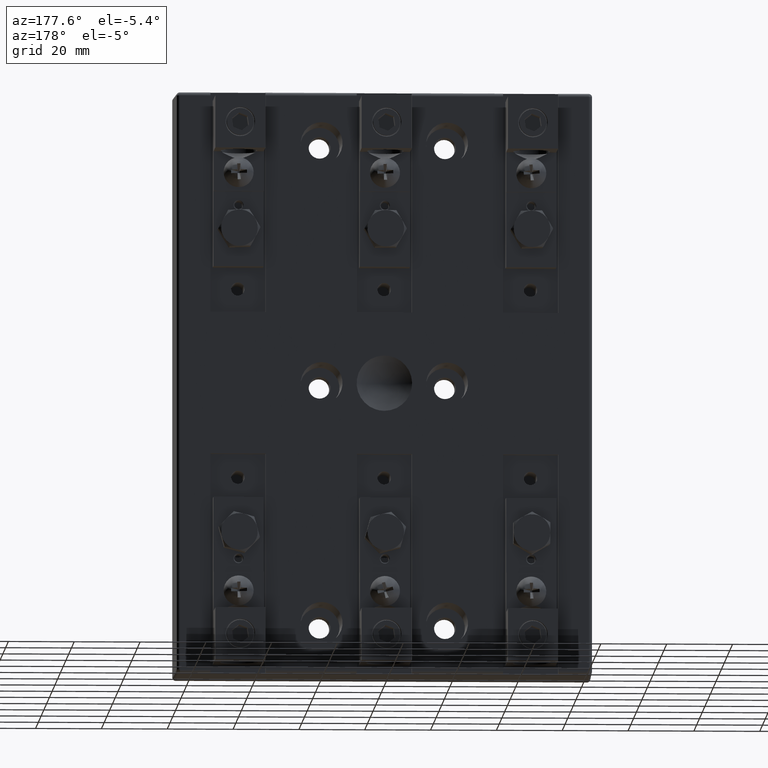
[diagram: clean part render]
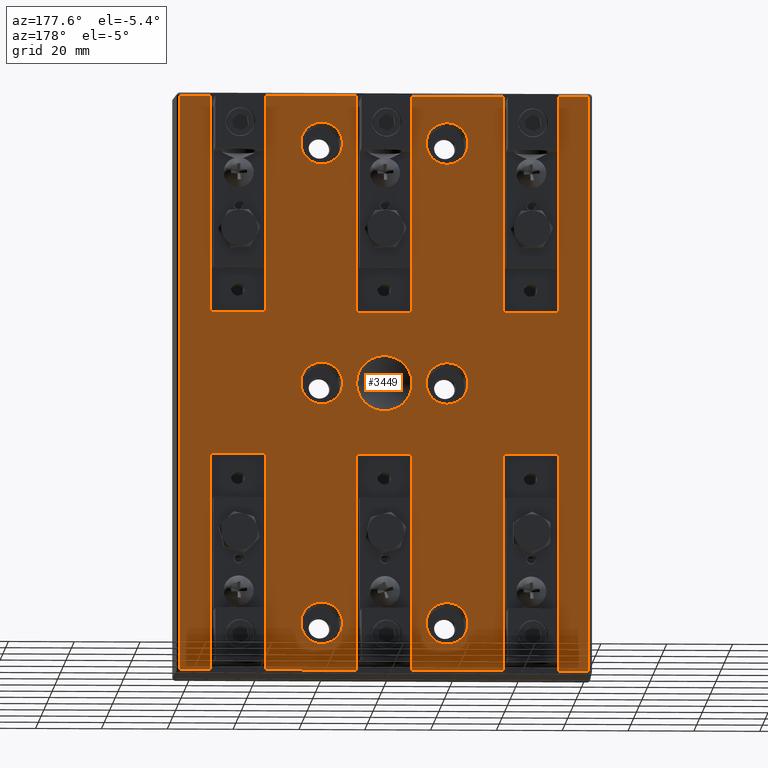
[diagram: same view with one face highlighted and labeled with its STEP entity id]
A machine part, auxiliary view. The second image highlights one B-rep face of the part: STEP entity #3449.
In plain terms, the highlighted planar face has unit normal (0, -1, 0).
Its self-contained STEP definition (entity closure, byte-faithful):
#759 = CARTESIAN_POINT ( 'NONE',  ( 2.499999999999984900, 0.8800000000000000000, -3.445331652338525300 ) ) ;
#921 = CARTESIAN_POINT ( 'NONE',  ( -0.2192438595112225500, 0.8799999999999998900, -0.2498004603860384500 ) ) ;
#990 = LINE ( 'NONE', #17015, #17112 ) ;
#1064 = CARTESIAN_POINT ( 'NONE',  ( -0.3311463024262430400, 0.8800000000000020000, 0.02148128289214068200 ) ) ;
#1106 = VERTEX_POINT ( 'NONE', #9375 ) ;
#1221 = CARTESIAN_POINT ( 'NONE',  ( -0.1754487178452213100, 0.8799999999999998900, 0.2816637087645330100 ) ) ;
#1347 = CARTESIAN_POINT ( 'NONE',  ( 0.1269282664143858700, 0.8800000000000004500, 0.3069830673328560700 ) ) ;
#1413 = VERTEX_POINT ( 'NONE', #3328 ) ;
#1446 = VECTOR ( 'NONE', #11176, 39.37007874015748100 ) ;
#1498 = CARTESIAN_POINT ( 'NONE',  ( 0.3141477289655598100, 0.8800000000000003400, 0.1069115169694839400 ) ) ;
#1610 = DIRECTION ( 'NONE',  ( -0.0000000000000000000, 4.937591343513748400E-033, 1.000000000000000000 ) ) ;
#1655 = CARTESIAN_POINT ( 'NONE',  ( 0.2640019327567058600, 0.8799999999999997800, -0.2019205375050617000 ) ) ;
#2037 = FACE_BOUND ( 'NONE', #42817, .T. ) ;
#2068 = VERTEX_POINT ( 'NONE', #36144 ) ;
#2342 = CARTESIAN_POINT ( 'NONE',  ( -0.7499999999999968900, 0.8800000000004779600, -2.879999999999983900 ) ) ;
#2370 = VECTOR ( 'NONE', #34048, 39.37007874015748100 ) ;
#2381 = EDGE_CURVE ( 'NONE', #30371, #7813, #27301, .T. ) ;
#2567 = VECTOR ( 'NONE', #8291, 39.37007874015748100 ) ;
#2626 = DIRECTION ( 'NONE',  ( 0.0000000000000000000, -4.937591343513748400E-033, -1.000000000000000000 ) ) ;
#2660 = VERTEX_POINT ( 'NONE', #27143 ) ;
#2725 = EDGE_CURVE ( 'NONE', #40840, #40840, #31617, .T. ) ;
#2861 = EDGE_CURVE ( 'NONE', #43401, #7771, #17073, .T. ) ;
#3035 = VERTEX_POINT ( 'NONE', #30109 ) ;
#3128 = EDGE_CURVE ( 'NONE', #3235, #3235, #40695, .T. ) ;
#3141 = FACE_BOUND ( 'NONE', #12259, .T. ) ;
#3235 = VERTEX_POINT ( 'NONE', #16953 ) ;
#3273 = EDGE_CURVE ( 'NONE', #27866, #41222, #34877, .T. ) ;
#3328 = CARTESIAN_POINT ( 'NONE',  ( 2.079999999999993000, 0.8800000000000000000, 0.8499999999999945400 ) ) ;
#3338 = CARTESIAN_POINT ( 'NONE',  ( 1.419999999999992600, 0.8800000000000000000, 3.445331652338525300 ) ) ;
#3449 = ADVANCED_FACE ( 'NONE', ( #20305, #33782, #3141, #11188, #2037, #37545, #28341, #19209 ), #26502, .F. ) ;
#3524 = EDGE_CURVE ( 'NONE', #7771, #25422, #6898, .T. ) ;
#3648 = CARTESIAN_POINT ( 'NONE',  ( 1.419999999999992800, 0.8800000000000000000, 3.499999999999984000 ) ) ;
#3672 = EDGE_CURVE ( 'NONE', #27147, #18531, #7962, .T. ) ;
#3707 = DIRECTION ( 'NONE',  ( 1.000000000000000000, 7.164665015247693300E-050, -3.537618795846281300E-082 ) ) ;
#3715 = ORIENTED_EDGE ( 'NONE', *, *, #17405, .F. ) ;
#3741 = CARTESIAN_POINT ( 'NONE',  ( -2.445331652338533800, 0.8800000000000000000, 3.499999999999984000 ) ) ;
#3748 = EDGE_CURVE ( 'NONE', #41222, #30371, #8461, .T. ) ;
#4257 = EDGE_CURVE ( 'NONE', #39811, #1106, #26659, .T. ) ;
#4421 = CARTESIAN_POINT ( 'NONE',  ( -0.2635689654657674100, 0.8800000000000000000, -0.2025017510574802200 ) ) ;
#4448 = CARTESIAN_POINT ( 'NONE',  ( 2.499999999999984900, 0.8800000000000000000, 3.445331652338525300 ) ) ;
#4500 = CARTESIAN_POINT ( 'NONE',  ( 2.499999999999984900, 0.8800000000000000000, -3.445331652338525300 ) ) ;
#4553 = LINE ( 'NONE', #13580, #2370 ) ;
#4559 = CARTESIAN_POINT ( 'NONE',  ( -0.3274071072562865200, 0.8800000000000000000, 0.05405687285152507200 ) ) ;
#4565 = DIRECTION ( 'NONE',  ( 0.0000000000000000000, -4.937591343513748400E-033, -1.000000000000000000 ) ) ;
#4697 = CARTESIAN_POINT ( 'NONE',  ( -0.1469893110596560400, 0.8799999999999997800, 0.2975104552729566100 ) ) ;
#4715 = ORIENTED_EDGE ( 'NONE', *, *, #27508, .F. ) ;
#4838 = CARTESIAN_POINT ( 'NONE',  ( 2.499999999999984900, 0.8800000000000000000, -0.8499999999999945400 ) ) ;
#4845 = CARTESIAN_POINT ( 'NONE',  ( 0.1656156309045838900, 0.8799999999999998900, 0.2875570132037565400 ) ) ;
#4903 = EDGE_CURVE ( 'NONE', #1106, #2068, #17513, .T. ) ;
#4993 = CARTESIAN_POINT ( 'NONE',  ( 0.3231278430721200000, 0.8800000000000000000, 0.07553289736540189100 ) ) ;
#5118 = CARTESIAN_POINT ( 'NONE',  ( 0.2194095546418384800, 0.8799999999999996700, -0.2496563343311452000 ) ) ;
#5162 = VERTEX_POINT ( 'NONE', #33914 ) ;
#5399 = ORIENTED_EDGE ( 'NONE', *, *, #3128, .F. ) ;
#5801 = DIRECTION ( 'NONE',  ( 0.0000000000000000000, 0.0000000000000000000, 1.000000000000000000 ) ) ;
#5895 = EDGE_CURVE ( 'NONE', #26377, #18978, #17428, .T. ) ;
#5972 = DIRECTION ( 'NONE',  ( 7.164665015247693300E-050, -1.000000000000000000, 4.937591343513748400E-033 ) ) ;
#6373 = VECTOR ( 'NONE', #18714, 39.37007874015748100 ) ;
#6490 = CARTESIAN_POINT ( 'NONE',  ( -1.419999999999990800, 0.8800000000000000000, 3.499999999999984000 ) ) ;
#6669 = VERTEX_POINT ( 'NONE', #27219 ) ;
#6801 = ORIENTED_EDGE ( 'NONE', *, *, #16807, .F. ) ;
#6814 = EDGE_CURVE ( 'NONE', #3035, #39811, #11443, .T. ) ;
#6898 = LINE ( 'NONE', #20055, #14911 ) ;
#7055 = CARTESIAN_POINT ( 'NONE',  ( 2.445331652338533300, 0.8800000000000000000, 3.499999999999984000 ) ) ;
#7144 = ORIENTED_EDGE ( 'NONE', *, *, #14268, .F. ) ;
#7172 = CARTESIAN_POINT ( 'NONE',  ( 1.419999999999992600, 0.8800000000000000000, 3.499999999999984000 ) ) ;
#7328 = LINE ( 'NONE', #25058, #21261 ) ;
#7331 = CARTESIAN_POINT ( 'NONE',  ( 1.419999999999992800, 0.8800000000000000000, -0.8499999999999945400 ) ) ;
#7495 = DIRECTION ( 'NONE',  ( -0.0000000000000000000, 4.937591343513748400E-033, 1.000000000000000000 ) ) ;
#7499 = CARTESIAN_POINT ( 'NONE',  ( 0.3299999999999982400, 0.8800000000000000000, -3.445331652338525300 ) ) ;
#7567 = B_SPLINE_CURVE_WITH_KNOTS ( 'NONE', 3,
 ( #28242, #21358, #31744, #11154, #35227, #14590, #38674, #18053, #42108, #21499, #921, #24937, #4421, #28384, #7861, #31900, #11291, #35376, #14737, #38828, #18205, #42245, #21646, #1064, #25084, #4559, #28532, #8001, #32031, #11441, #35517, #14876, #38965, #18350, #42393, #21782, #1221, #25224, #4697, #28678, #8151, #32176, #11572, #35663, #15021, #39092, #18493, #42537, #21936, #1347, #25376, #4845, #28827, #8298, #32322, #11715, #35803, #15190, #39235, #18633, #42684, #22081, #1498, #25517, #4993, #28972, #8429, #32480, #11867, #35937, #15324, #39379, #18778, #42828, #22223, #1655, #25671, #5118, #29138, #8572, #32620, #12018, #36085, #15463, #39518, #18929, #42963, #22367 ),
 .UNSPECIFIED., .T., .F.,
 ( 4, 2, 2, 2, 2, 2, 2, 2, 1, 2, 2, 2, 2, 2, 2, 2, 2, 2, 2, 2, 2, 2, 2, 2, 2, 1, 2, 2, 2, 2, 2, 2, 2, 2, 2, 2, 2, 2, 2, 2, 2, 2, 2, 2, 4 ),
 ( 0.0000000000000000000, 0.001645938381214450200, 0.002468907571821675300, 0.003291876762428900400, 0.004937815143643353200, 0.006583753524857805100, 0.008229691906072257900, 0.009052661096679482200, 0.009875630287286706400, 0.01069859947789393100, 0.01152156866850115300, 0.01316750704971560000, 0.01399047624032282400, 0.01481344543093004800, 0.01645938381214449500, 0.01728235300275171900, 0.01810532219335894000, 0.01975126057457338900, 0.02139719895578783400, 0.02222016814639505800, 0.02304313733700227900, 0.02468907571821672700, 0.02633501409943117500, 0.02798095248064562700, 0.02880392167125284800, 0.02962689086186007200, 0.03044986005246730000, 0.03127282924307452100, 0.03291876762428896900, 0.03374173681489618700, 0.03456470600550341100, 0.03621064438671785200, 0.03703361357732507000, 0.03785658276793228700, 0.03950252114914672800, 0.04114845953036117000, 0.04197142872096838700, 0.04279439791157560500, 0.04444033629279005300, 0.04608627467400449500, 0.04773221305521894300, 0.04855518224582616000, 0.04937815143643337800, 0.05102408981764781900, 0.05267002819886226800 ),
 .UNSPECIFIED. ) ;
#7639 = CARTESIAN_POINT ( 'NONE',  ( 2.499999999999984900, 0.8800000000000000000, -0.8499999999999945400 ) ) ;
#7771 = VERTEX_POINT ( 'NONE', #19474 ) ;
#7813 = VERTEX_POINT ( 'NONE', #26375 ) ;
#7861 = CARTESIAN_POINT ( 'NONE',  ( -0.2873992381528099300, 0.8800000000000002300, -0.1658900632383758500 ) ) ;
#7950 = VERTEX_POINT ( 'NONE', #36719 ) ;
#7952 = CIRCLE ( 'NONE', #35690, 0.2499999999999872300 ) ;
#7962 = LINE ( 'NONE', #7172, #19733 ) ;
#8000 = CARTESIAN_POINT ( 'NONE',  ( 0.7499999999999967800, 0.8800000000004779600, 0.2499999999999459900 ) ) ;
#8001 = CARTESIAN_POINT ( 'NONE',  ( -0.3148033837368349200, 0.8800000000000002300, 0.1066340052659638700 ) ) ;
#8151 = CARTESIAN_POINT ( 'NONE',  ( -0.1069030756697837800, 0.8799999999999997800, 0.3147141120836246000 ) ) ;
#8204 = CARTESIAN_POINT ( 'NONE',  ( 2.445331652338533300, 0.8799999999999998900, -3.445331652338525300 ) ) ;
#8291 = DIRECTION ( 'NONE',  ( 1.000000000000000000, 7.164665015247693300E-050, -3.537618795846281300E-082 ) ) ;
#8298 = CARTESIAN_POINT ( 'NONE',  ( 0.2022726151394981500, 0.8800000000000000000, 0.2637479304188156700 ) ) ;
#8299 = ORIENTED_EDGE ( 'NONE', *, *, #35514, .F. ) ;
#8429 = CARTESIAN_POINT ( 'NONE',  ( 0.3316399808222250700, 0.8800000000000003400, 0.02220739623505074400 ) ) ;
#8461 = LINE ( 'NONE', #14472, #26696 ) ;
#8527 = CARTESIAN_POINT ( 'NONE',  ( -2.079999999999991600, 0.8800000000000000000, 3.499999999999984000 ) ) ;
#8572 = CARTESIAN_POINT ( 'NONE',  ( 0.1755975452067239400, 0.8800000000000004500, -0.2815741846573110400 ) ) ;
#8717 = EDGE_CURVE ( 'NONE', #15387, #35169, #12524, .T. ) ;
#8860 = ORIENTED_EDGE ( 'NONE', *, *, #9312, .F. ) ;
#8918 = ORIENTED_EDGE ( 'NONE', *, *, #2381, .F. ) ;
#8936 = DIRECTION ( 'NONE',  ( -0.0000000000000000000, 1.000000000000000000, 0.0000000000000000000 ) ) ;
#9215 = CARTESIAN_POINT ( 'NONE',  ( 2.499999999999984900, 0.8800000000000000000, 0.8499999999999945400 ) ) ;
#9312 = EDGE_CURVE ( 'NONE', #2068, #38470, #19460, .T. ) ;
#9323 = AXIS2_PLACEMENT_3D ( 'NONE', #36754, #35082, #34929 ) ;
#9375 = CARTESIAN_POINT ( 'NONE',  ( -0.3299999999999984100, 0.8800000000000000000, -3.445331652338525300 ) ) ;
#9504 = VECTOR ( 'NONE', #42829, 39.37007874015748100 ) ;
#9543 = CARTESIAN_POINT ( 'NONE',  ( 0.3299999999999984100, 0.8800000000000000000, 3.499999999999984000 ) ) ;
#9619 = LINE ( 'NONE', #6490, #17664 ) ;
#9881 = DIRECTION ( 'NONE',  ( -1.000000000000000000, -7.164665015247693300E-050, 3.537618795846281300E-082 ) ) ;
#10005 = VERTEX_POINT ( 'NONE', #39266 ) ;
#10195 = ORIENTED_EDGE ( 'NONE', *, *, #27618, .F. ) ;
#10447 = CARTESIAN_POINT ( 'NONE',  ( 2.499999999999984900, 0.8800000000000000000, -0.8499999999999945400 ) ) ;
#10545 = VECTOR ( 'NONE', #27781, 39.37007874015748100 ) ;
#10580 = LINE ( 'NONE', #32481, #9504 ) ;
#10688 = CARTESIAN_POINT ( 'NONE',  ( 2.499999999999984900, 0.8800000000000000000, 3.445331652338525300 ) ) ;
#10851 = ORIENTED_EDGE ( 'NONE', *, *, #32587, .F. ) ;
#11093 = DIRECTION ( 'NONE',  ( -0.0000000000000000000, 1.000000000000000000, 0.0000000000000000000 ) ) ;
#11154 = CARTESIAN_POINT ( 'NONE',  ( -0.07524719073246077800, 0.8799999999999998900, -0.3231943550607726000 ) ) ;
#11176 = DIRECTION ( 'NONE',  ( -1.000000000000000000, -7.164665015247693300E-050, 3.537618795846281300E-082 ) ) ;
#11188 = FACE_BOUND ( 'NONE', #18216, .T. ) ;
#11266 = EDGE_CURVE ( 'NONE', #5162, #19350, #39741, .T. ) ;
#11291 = CARTESIAN_POINT ( 'NONE',  ( -0.3068754760415490800, 0.8800000000000008900, -0.1271880669884430100 ) ) ;
#11441 = CARTESIAN_POINT ( 'NONE',  ( -0.2976586157838774800, 0.8800000000000004500, 0.1466902449278988700 ) ) ;
#11443 = LINE ( 'NONE', #14447, #39936 ) ;
#11572 = CARTESIAN_POINT ( 'NONE',  ( -0.04374129921759411400, 0.8800000000000003400, 0.3294784177325302300 ) ) ;
#11575 = EDGE_CURVE ( 'NONE', #10005, #5162, #39199, .T. ) ;
#11595 = LINE ( 'NONE', #10688, #10545 ) ;
#11686 = CARTESIAN_POINT ( 'NONE',  ( -0.3299999999999978500, 0.8800000000000000000, 3.445331652338525300 ) ) ;
#11715 = CARTESIAN_POINT ( 'NONE',  ( 0.2419455241667647900, 0.8800000000000003400, 0.2271106692533713400 ) ) ;
#11867 = CARTESIAN_POINT ( 'NONE',  ( 0.3295489963742634900, 0.8800000000000000000, -0.04317576522689654100 ) ) ;
#12018 = CARTESIAN_POINT ( 'NONE',  ( 0.1470073685316878000, 0.8800000000000000000, -0.2975012008283776700 ) ) ;
#12259 = EDGE_LOOP ( 'NONE', ( #24182 ) ) ;
#12308 = ORIENTED_EDGE ( 'NONE', *, *, #33708, .F. ) ;
#12524 = LINE ( 'NONE', #3648, #30845 ) ;
#12607 = ORIENTED_EDGE ( 'NONE', *, *, #4257, .F. ) ;
#12705 = CARTESIAN_POINT ( 'NONE',  ( -2.079999999999991600, 0.8800000000000000000, -0.8499999999999945400 ) ) ;
#12864 = VERTEX_POINT ( 'NONE', #40945 ) ;
#13101 = EDGE_CURVE ( 'NONE', #38470, #43044, #10580, .T. ) ;
#13223 = EDGE_LOOP ( 'NONE', ( #12308 ) ) ;
#13580 = CARTESIAN_POINT ( 'NONE',  ( -0.3299999999999978500, 0.8800000000000000000, 3.499999999999984000 ) ) ;
#13927 = VECTOR ( 'NONE', #27713, 39.37007874015748100 ) ;
#14268 = EDGE_CURVE ( 'NONE', #34183, #26377, #34694, .T. ) ;
#14447 = CARTESIAN_POINT ( 'NONE',  ( -1.419999999999991900, 0.8800000000000000000, 3.499999999999984000 ) ) ;
#14472 = CARTESIAN_POINT ( 'NONE',  ( -2.079999999999992100, 0.8800000000000000000, 3.499999999999984000 ) ) ;
#14590 = CARTESIAN_POINT ( 'NONE',  ( -0.1065917831559456000, 0.8800000000000000000, -0.3142557739471974500 ) ) ;
#14737 = CARTESIAN_POINT ( 'NONE',  ( -0.3204825351325991100, 0.8799999999999997800, -0.08607348378935819600 ) ) ;
#14842 = ORIENTED_EDGE ( 'NONE', *, *, #2725, .F. ) ;
#14876 = CARTESIAN_POINT ( 'NONE',  ( -0.2818180422526021000, 0.8799999999999998900, 0.1752009226184029500 ) ) ;
#14911 = VECTOR ( 'NONE', #9881, 39.37007874015748100 ) ;
#15021 = CARTESIAN_POINT ( 'NONE',  ( 0.02152699310816967200, 0.8800000000000003400, 0.3316701091577655700 ) ) ;
#15190 = CARTESIAN_POINT ( 'NONE',  ( 0.2631063414190508700, 0.8799999999999996700, 0.2022230548163298500 ) ) ;
#15324 = CARTESIAN_POINT ( 'NONE',  ( 0.3206457450560685800, 0.8800000000000002300, -0.08546620509309386900 ) ) ;
#15387 = VERTEX_POINT ( 'NONE', #22499 ) ;
#15463 = CARTESIAN_POINT ( 'NONE',  ( 0.1073038851982616300, 0.8799999999999998900, -0.3145672352267900300 ) ) ;
#15618 = CARTESIAN_POINT ( 'NONE',  ( -1.419999999999991000, 0.8800000000000000000, 0.8499999999999949800 ) ) ;
#15768 = CIRCLE ( 'NONE', #43457, 0.2499999999999752100 ) ;
#15820 = CARTESIAN_POINT ( 'NONE',  ( 0.7499999999999957800, 0.8800000000004779600, -2.879999999999983900 ) ) ;
#15932 = ORIENTED_EDGE ( 'NONE', *, *, #40550, .F. ) ;
#16100 = CARTESIAN_POINT ( 'NONE',  ( -0.7499999999999961100, 0.8800000000004779600, 2.879999999999983900 ) ) ;
#16150 = CARTESIAN_POINT ( 'NONE',  ( 2.499999999999984900, 0.8800000000000000000, 3.499999999999984000 ) ) ;
#16401 = CARTESIAN_POINT ( 'NONE',  ( -1.419999999999991500, 0.8800000000000000000, -3.445331652338525300 ) ) ;
#16608 = CARTESIAN_POINT ( 'NONE',  ( 2.499999999999984900, 0.8800000000000000000, -3.445331652338525300 ) ) ;
#16683 = DIRECTION ( 'NONE',  ( 0.0000000000000000000, -4.937591343513748400E-033, -1.000000000000000000 ) ) ;
#16807 = EDGE_CURVE ( 'NONE', #6669, #27866, #9619, .T. ) ;
#16932 = CARTESIAN_POINT ( 'NONE',  ( -2.079999999999992100, 0.8800000000000000000, 3.445331652338525300 ) ) ;
#16953 = CARTESIAN_POINT ( 'NONE',  ( 0.7499999999999963400, 0.8800000000004779600, 3.129999999999959000 ) ) ;
#17015 = CARTESIAN_POINT ( 'NONE',  ( 2.499999999999984900, 0.8800000000000000000, -3.445331652338525300 ) ) ;
#17073 = LINE ( 'NONE', #9543, #34298 ) ;
#17112 = VECTOR ( 'NONE', #44518, 39.37007874015748100 ) ;
#17280 = LINE ( 'NONE', #24008, #26386 ) ;
#17405 = EDGE_CURVE ( 'NONE', #19350, #32604, #21363, .T. ) ;
#17428 = LINE ( 'NONE', #8527, #26532 ) ;
#17513 = LINE ( 'NONE', #38319, #34743 ) ;
#17664 = VECTOR ( 'NONE', #16683, 39.37007874015748100 ) ;
#17673 = ORIENTED_EDGE ( 'NONE', *, *, #3672, .F. ) ;
#18053 = CARTESIAN_POINT ( 'NONE',  ( -0.1470715229474666400, 0.8799999999999997800, -0.2980646922903003000 ) ) ;
#18113 = ORIENTED_EDGE ( 'NONE', *, *, #6814, .F. ) ;
#18205 = CARTESIAN_POINT ( 'NONE',  ( -0.3295440873304810200, 0.8800000000000002300, -0.04332489849078265100 ) ) ;
#18216 = EDGE_LOOP ( 'NONE', ( #5399 ) ) ;
#18350 = CARTESIAN_POINT ( 'NONE',  ( -0.2501114863262510800, 0.8799999999999996700, 0.2189141379513516700 ) ) ;
#18493 = CARTESIAN_POINT ( 'NONE',  ( 0.07510051611857719600, 0.8799999999999994500, 0.3232315155004909500 ) ) ;
#18531 = VERTEX_POINT ( 'NONE', #3338 ) ;
#18533 = ORIENTED_EDGE ( 'NONE', *, *, #13101, .F. ) ;
#18633 = CARTESIAN_POINT ( 'NONE',  ( 0.2877386179054513500, 0.8800000000000002300, 0.1663647473667031800 ) ) ;
#18641 = EDGE_LOOP ( 'NONE', ( #38193 ) ) ;
#18654 = ORIENTED_EDGE ( 'NONE', *, *, #11575, .F. ) ;
#18714 = DIRECTION ( 'NONE',  ( -1.000000000000000000, -7.164665015247693300E-050, 3.537618795846281300E-082 ) ) ;
#18778 = CARTESIAN_POINT ( 'NONE',  ( 0.3106666880965310900, 0.8799999999999997800, -0.1166391403362698600 ) ) ;
#18848 = VECTOR ( 'NONE', #3707, 39.37007874015748100 ) ;
#18882 = CARTESIAN_POINT ( 'NONE',  ( -2.445331652338533800, 0.8799999999999998900, -3.445331652338525300 ) ) ;
#18929 = CARTESIAN_POINT ( 'NONE',  ( 0.04359527843575283100, 0.8800000000000006700, -0.3295122274615211500 ) ) ;
#18978 = VERTEX_POINT ( 'NONE', #12705 ) ;
#19074 = ORIENTED_EDGE ( 'NONE', *, *, #8717, .F. ) ;
#19209 = FACE_OUTER_BOUND ( 'NONE', #22110, .T. ) ;
#19255 = DIRECTION ( 'NONE',  ( 0.0000000000000000000, 0.0000000000000000000, 1.000000000000000000 ) ) ;
#19350 = VERTEX_POINT ( 'NONE', #8204 ) ;
#19404 = CARTESIAN_POINT ( 'NONE',  ( 2.445331652338533300, 0.8799999999999998900, 3.445331652338525300 ) ) ;
#19460 = LINE ( 'NONE', #7639, #36710 ) ;
#19474 = CARTESIAN_POINT ( 'NONE',  ( 0.3299999999999984100, 0.8800000000000000000, 0.8499999999999948700 ) ) ;
#19547 = DIRECTION ( 'NONE',  ( 0.0000000000000000000, 0.0000000000000000000, 1.000000000000000000 ) ) ;
#19733 = VECTOR ( 'NONE', #27691, 39.37007874015748100 ) ;
#19795 = EDGE_CURVE ( 'NONE', #25422, #29018, #4553, .T. ) ;
#20055 = CARTESIAN_POINT ( 'NONE',  ( 2.499999999999984900, 0.8800000000000000000, 0.8499999999999949800 ) ) ;
#20062 = DIRECTION ( 'NONE',  ( 1.000000000000000000, 7.164665015247693300E-050, -3.537618795846281300E-082 ) ) ;
#20131 = EDGE_CURVE ( 'NONE', #12864, #12864, #15768, .T. ) ;
#20198 = CARTESIAN_POINT ( 'NONE',  ( 0.3299999999999984100, 0.8800000000000000000, 3.445331652338525300 ) ) ;
#20305 = FACE_BOUND ( 'NONE', #39004, .T. ) ;
#20356 = ORIENTED_EDGE ( 'NONE', *, *, #2861, .F. ) ;
#20745 = ORIENTED_EDGE ( 'NONE', *, *, #5895, .F. ) ;
#20900 = VECTOR ( 'NONE', #4565, 39.37007874015748100 ) ;
#21061 = CARTESIAN_POINT ( 'NONE',  ( -0.7499999999999968900, 0.8800000000004779600, -2.629999999999996800 ) ) ;
#21091 = VECTOR ( 'NONE', #22842, 39.37007874015748100 ) ;
#21261 = VECTOR ( 'NONE', #31714, 39.37007874015748100 ) ;
#21358 = CARTESIAN_POINT ( 'NONE',  ( -0.02191123905046396500, 0.8799999999999998900, -0.3316624790355396900 ) ) ;
#21363 = LINE ( 'NONE', #7055, #30519 ) ;
#21416 = DIRECTION ( 'NONE',  ( 1.000000000000000000, 7.164665015247693300E-050, -3.537618795846281300E-082 ) ) ;
#21474 = CIRCLE ( 'NONE', #26982, 0.2499999999999459900 ) ;
#21499 = CARTESIAN_POINT ( 'NONE',  ( -0.2021740420646250500, 0.8800000000000000000, -0.2638094454732232700 ) ) ;
#21646 = CARTESIAN_POINT ( 'NONE',  ( -0.3316681747407456100, 0.8800000000000000000, 0.01063868957930300300 ) ) ;
#21782 = CARTESIAN_POINT ( 'NONE',  ( -0.2023841585807472900, 0.8800000000000003400, 0.2636426408410818000 ) ) ;
#21936 = CARTESIAN_POINT ( 'NONE',  ( 0.1065554465531798500, 0.8800000000000002300, 0.3142672540158792400 ) ) ;
#22030 = EDGE_CURVE ( 'NONE', #1413, #27147, #39375, .T. ) ;
#22081 = CARTESIAN_POINT ( 'NONE',  ( 0.3104357446945940100, 0.8800000000000002300, 0.1172497301220686300 ) ) ;
#22110 = EDGE_LOOP ( 'NONE', ( #10195, #17673, #34335, #31610, #4715, #3715, #28334, #18654, #15932, #19074, #8299, #18533, #8860, #32641, #12607, #18113, #34221, #20745, #7144, #24277, #8918, #30162, #44431, #6801, #22146, #39986, #37872, #20356 ) ) ;
#22146 = ORIENTED_EDGE ( 'NONE', *, *, #38240, .F. ) ;
#22223 = CARTESIAN_POINT ( 'NONE',  ( 0.2880159924566262900, 0.8800000000000002300, -0.1658786063807924900 ) ) ;
#22367 = CARTESIAN_POINT ( 'NONE',  ( 2.561107494060246800E-017, 0.8799999999999998900, -0.3316624790355396400 ) ) ;
#22499 = CARTESIAN_POINT ( 'NONE',  ( 1.419999999999992800, 0.8800000000000000000, -3.445331652338525300 ) ) ;
#22842 = DIRECTION ( 'NONE',  ( -1.000000000000000000, -7.164665015247693300E-050, 3.537618795846281300E-082 ) ) ;
#23061 = ORIENTED_EDGE ( 'NONE', *, *, #42203, .F. ) ;
#23692 = CARTESIAN_POINT ( 'NONE',  ( -0.7499999999999956700, 0.8800000000004779600, 0.2499999999999459900 ) ) ;
#23782 = VERTEX_POINT ( 'NONE', #21061 ) ;
#24008 = CARTESIAN_POINT ( 'NONE',  ( 2.079999999999993400, 0.8800000000000000000, 3.499999999999984000 ) ) ;
#24182 = ORIENTED_EDGE ( 'NONE', *, *, #20131, .F. ) ;
#24260 = DIRECTION ( 'NONE',  ( -0.0000000000000000000, 4.937591343513748400E-033, 1.000000000000000000 ) ) ;
#24277 = ORIENTED_EDGE ( 'NONE', *, *, #35127, .F. ) ;
#24921 = DIRECTION ( 'NONE',  ( 1.000000000000000000, 7.164665015247693300E-050, -3.537618795846281300E-082 ) ) ;
#24937 = CARTESIAN_POINT ( 'NONE',  ( -0.2498398044864721900, 0.8799999999999997800, -0.2191990238039729100 ) ) ;
#25058 = CARTESIAN_POINT ( 'NONE',  ( 2.499999999999984900, 0.8800000000000000000, 3.445331652338525300 ) ) ;
#25084 = CARTESIAN_POINT ( 'NONE',  ( -0.3290152370220877900, 0.8800000000000016700, 0.04322375426272444900 ) ) ;
#25118 = EDGE_CURVE ( 'NONE', #18978, #3035, #29969, .T. ) ;
#25224 = CARTESIAN_POINT ( 'NONE',  ( -0.1661679881181711000, 0.8800000000000000000, 0.2872394963915541600 ) ) ;
#25260 = CARTESIAN_POINT ( 'NONE',  ( -2.079999999999991600, 0.8800000000000000000, -3.445331652338525300 ) ) ;
#25376 = CARTESIAN_POINT ( 'NONE',  ( 0.1464797266573334700, 0.8800000000000005600, 0.2977604116080270800 ) ) ;
#25422 = VERTEX_POINT ( 'NONE', #36959 ) ;
#25517 = CARTESIAN_POINT ( 'NONE',  ( 0.3204908814575841400, 0.8800000000000004500, 0.08604918929005549200 ) ) ;
#25671 = CARTESIAN_POINT ( 'NONE',  ( 0.2500065759612464200, 0.8799999999999998900, -0.2190103876895521400 ) ) ;
#25983 = AXIS2_PLACEMENT_3D ( 'NONE', #31683, #11093, #35175 ) ;
#26341 = DIRECTION ( 'NONE',  ( -0.0000000000000000000, 1.000000000000000000, 0.0000000000000000000 ) ) ;
#26375 = CARTESIAN_POINT ( 'NONE',  ( -2.445331652338534200, 0.8799999999999998900, 3.445331652338525300 ) ) ;
#26377 = VERTEX_POINT ( 'NONE', #25260 ) ;
#26386 = VECTOR ( 'NONE', #44634, 39.37007874015748100 ) ;
#26502 = PLANE ( 'NONE',  #34396 ) ;
#26532 = VECTOR ( 'NONE', #1610, 39.37007874015748100 ) ;
#26659 = LINE ( 'NONE', #759, #35865 ) ;
#26696 = VECTOR ( 'NONE', #41986, 39.37007874015748100 ) ;
#26982 = AXIS2_PLACEMENT_3D ( 'NONE', #29487, #8936, #32983 ) ;
#27143 = CARTESIAN_POINT ( 'NONE',  ( 2.079999999999993400, 0.8800000000000000000, 3.445331652338525300 ) ) ;
#27147 = VERTEX_POINT ( 'NONE', #29453 ) ;
#27219 = CARTESIAN_POINT ( 'NONE',  ( -1.419999999999990800, 0.8800000000000000000, 3.445331652338525300 ) ) ;
#27301 = LINE ( 'NONE', #41347, #43445 ) ;
#27508 = EDGE_CURVE ( 'NONE', #32604, #2660, #11595, .T. ) ;
#27618 = EDGE_CURVE ( 'NONE', #18531, #43401, #7328, .T. ) ;
#27691 = DIRECTION ( 'NONE',  ( -0.0000000000000000000, 4.937591343513748400E-033, 1.000000000000000000 ) ) ;
#27713 = DIRECTION ( 'NONE',  ( 0.0000000000000000000, -4.937591343513748400E-033, -1.000000000000000000 ) ) ;
#27781 = DIRECTION ( 'NONE',  ( -1.000000000000000000, -7.164665015247693300E-050, 3.537618795846281300E-082 ) ) ;
#27866 = VERTEX_POINT ( 'NONE', #15618 ) ;
#28242 = CARTESIAN_POINT ( 'NONE',  ( 2.561107494060246800E-017, 0.8799999999999998900, -0.3316624790355396400 ) ) ;
#28334 = ORIENTED_EDGE ( 'NONE', *, *, #11266, .F. ) ;
#28341 = FACE_BOUND ( 'NONE', #13223, .T. ) ;
#28384 = CARTESIAN_POINT ( 'NONE',  ( -0.2817533277701013100, 0.8800000000000000000, -0.1753110149847516000 ) ) ;
#28532 = CARTESIAN_POINT ( 'NONE',  ( -0.3210625967714964000, 0.8800000000000002300, 0.08595956312130699500 ) ) ;
#28678 = CARTESIAN_POINT ( 'NONE',  ( -0.1370471427294281400, 0.8799999999999997800, 0.3022191103367891100 ) ) ;
#28827 = CARTESIAN_POINT ( 'NONE',  ( 0.1750175700320476000, 0.8800000000000000000, 0.2819364211821028800 ) ) ;
#28843 = LINE ( 'NONE', #4448, #1446 ) ;
#28972 = CARTESIAN_POINT ( 'NONE',  ( 0.3294761267477195300, 0.8799999999999998900, 0.04373520452373683800 ) ) ;
#29018 = VERTEX_POINT ( 'NONE', #11686 ) ;
#29138 = CARTESIAN_POINT ( 'NONE',  ( 0.2027283271896374000, 0.8800000000000002300, -0.2633919185303901200 ) ) ;
#29249 = VECTOR ( 'NONE', #20062, 39.37007874015748100 ) ;
#29453 = CARTESIAN_POINT ( 'NONE',  ( 1.419999999999992600, 0.8800000000000000000, 0.8499999999999945400 ) ) ;
#29487 = CARTESIAN_POINT ( 'NONE',  ( 0.7499999999999967800, 0.8800000000004779600, 0.0000000000000000000 ) ) ;
#29969 = LINE ( 'NONE', #4838, #2567 ) ;
#29977 = DIRECTION ( 'NONE',  ( 0.0000000000000000000, -4.937591343513748400E-033, -1.000000000000000000 ) ) ;
#30109 = CARTESIAN_POINT ( 'NONE',  ( -1.419999999999991900, 0.8800000000000000000, -0.8499999999999945400 ) ) ;
#30162 = ORIENTED_EDGE ( 'NONE', *, *, #3748, .F. ) ;
#30371 = VERTEX_POINT ( 'NONE', #16932 ) ;
#30519 = VECTOR ( 'NONE', #24260, 39.37007874015748100 ) ;
#30621 = VECTOR ( 'NONE', #33876, 39.37007874015748100 ) ;
#30845 = VECTOR ( 'NONE', #34603, 39.37007874015748100 ) ;
#31056 = VERTEX_POINT ( 'NONE', #43745 ) ;
#31610 = ORIENTED_EDGE ( 'NONE', *, *, #36008, .F. ) ;
#31617 = CIRCLE ( 'NONE', #9323, 0.2499999999999459900 ) ;
#31683 = CARTESIAN_POINT ( 'NONE',  ( 0.7499999999999963400, 0.8800000000004779600, 2.879999999999983900 ) ) ;
#31714 = DIRECTION ( 'NONE',  ( -1.000000000000000000, -7.164665015247693300E-050, 3.537618795846281300E-082 ) ) ;
#31744 = CARTESIAN_POINT ( 'NONE',  ( -0.04345632619979861900, 0.8799999999999998900, -0.3295124749358099300 ) ) ;
#31900 = CARTESIAN_POINT ( 'NONE',  ( -0.2976315738120692800, 0.8799999999999998900, -0.1467422180309631600 ) ) ;
#31911 = CARTESIAN_POINT ( 'NONE',  ( 2.079999999999992500, 0.8800000000000000000, 3.499999999999984000 ) ) ;
#32031 = CARTESIAN_POINT ( 'NONE',  ( -0.3023533039021632000, 0.8800000000000002300, 0.1367496800444210600 ) ) ;
#32176 = CARTESIAN_POINT ( 'NONE',  ( -0.08622944443405185200, 0.8800000000000004500, 0.3209888034205704600 ) ) ;
#32212 = LINE ( 'NONE', #3741, #13927 ) ;
#32322 = CARTESIAN_POINT ( 'NONE',  ( 0.2189882085372923900, 0.8799999999999994500, 0.2500234699659355000 ) ) ;
#32480 = CARTESIAN_POINT ( 'NONE',  ( 0.3316846315932102700, 0.8800000000000000000, -0.02153022276202503500 ) ) ;
#32481 = CARTESIAN_POINT ( 'NONE',  ( 0.3299999999999981300, 0.8800000000000000000, 3.499999999999984000 ) ) ;
#32587 = EDGE_CURVE ( 'NONE', #7950, #7950, #7952, .T. ) ;
#32604 = VERTEX_POINT ( 'NONE', #19404 ) ;
#32620 = CARTESIAN_POINT ( 'NONE',  ( 0.1661696735870439900, 0.8800000000000002300, -0.2872381772622042400 ) ) ;
#32641 = ORIENTED_EDGE ( 'NONE', *, *, #4903, .F. ) ;
#32983 = DIRECTION ( 'NONE',  ( 0.0000000000000000000, 0.0000000000000000000, 1.000000000000000000 ) ) ;
#33088 = CARTESIAN_POINT ( 'NONE',  ( 0.3299999999999981300, 0.8800000000000000000, -0.8499999999999945400 ) ) ;
#33708 = EDGE_CURVE ( 'NONE', #31056, #31056, #7567, .T. ) ;
#33782 = FACE_BOUND ( 'NONE', #35554, .T. ) ;
#33876 = DIRECTION ( 'NONE',  ( 1.000000000000000000, 7.164665015247693300E-050, -3.537618795846281300E-082 ) ) ;
#33914 = CARTESIAN_POINT ( 'NONE',  ( 2.079999999999993000, 0.8800000000000000000, -3.445331652338525300 ) ) ;
#34048 = DIRECTION ( 'NONE',  ( -0.0000000000000000000, 4.937591343513748400E-033, 1.000000000000000000 ) ) ;
#34183 = VERTEX_POINT ( 'NONE', #18882 ) ;
#34221 = ORIENTED_EDGE ( 'NONE', *, *, #25118, .F. ) ;
#34298 = VECTOR ( 'NONE', #2626, 39.37007874015748100 ) ;
#34335 = ORIENTED_EDGE ( 'NONE', *, *, #22030, .F. ) ;
#34396 = AXIS2_PLACEMENT_3D ( 'NONE', #16150, #5972, #29977 ) ;
#34603 = DIRECTION ( 'NONE',  ( -0.0000000000000000000, 4.937591343513748400E-033, 1.000000000000000000 ) ) ;
#34694 = LINE ( 'NONE', #16608, #29249 ) ;
#34743 = VECTOR ( 'NONE', #7495, 39.37007874015748100 ) ;
#34877 = LINE ( 'NONE', #42764, #6373 ) ;
#34929 = DIRECTION ( 'NONE',  ( 0.0000000000000000000, 0.0000000000000000000, 1.000000000000000000 ) ) ;
#35082 = DIRECTION ( 'NONE',  ( -0.0000000000000000000, 1.000000000000000000, 0.0000000000000000000 ) ) ;
#35088 = DIRECTION ( 'NONE',  ( 0.0000000000000000000, -4.937591343513748400E-033, -1.000000000000000000 ) ) ;
#35127 = EDGE_CURVE ( 'NONE', #7813, #34183, #32212, .T. ) ;
#35169 = VERTEX_POINT ( 'NONE', #7331 ) ;
#35175 = DIRECTION ( 'NONE',  ( 0.0000000000000000000, 0.0000000000000000000, 1.000000000000000000 ) ) ;
#35227 = CARTESIAN_POINT ( 'NONE',  ( -0.08575569837612161100, 0.8800000000000000000, -0.3205689627701656100 ) ) ;
#35376 = CARTESIAN_POINT ( 'NONE',  ( -0.3141723818487025000, 0.8799999999999998900, -0.1068335828294056900 ) ) ;
#35514 = EDGE_CURVE ( 'NONE', #43044, #15387, #990, .T. ) ;
#35517 = CARTESIAN_POINT ( 'NONE',  ( -0.2873908271655629100, 0.8800000000000005600, 0.1659071787731757100 ) ) ;
#35554 = EDGE_LOOP ( 'NONE', ( #10851 ) ) ;
#35663 = CARTESIAN_POINT ( 'NONE',  ( -0.02176146643790290200, 0.8799999999999998900, 0.3316548074722802100 ) ) ;
#35690 = AXIS2_PLACEMENT_3D ( 'NONE', #15820, #39866, #19255 ) ;
#35803 = CARTESIAN_POINT ( 'NONE',  ( 0.2492427267656999200, 0.8799999999999997800, 0.2190825733566347800 ) ) ;
#35865 = VECTOR ( 'NONE', #24921, 39.37007874015748100 ) ;
#35937 = CARTESIAN_POINT ( 'NONE',  ( 0.3232600496498104800, 0.8799999999999993400, -0.07496407292133267000 ) ) ;
#36008 = EDGE_CURVE ( 'NONE', #2660, #1413, #17280, .T. ) ;
#36080 = LINE ( 'NONE', #10447, #18848 ) ;
#36085 = CARTESIAN_POINT ( 'NONE',  ( 0.1372276575287045600, 0.8799999999999998900, -0.3021344689428889200 ) ) ;
#36144 = CARTESIAN_POINT ( 'NONE',  ( -0.3299999999999984100, 0.8800000000000000000, -0.8499999999999945400 ) ) ;
#36710 = VECTOR ( 'NONE', #21416, 39.37007874015748100 ) ;
#36719 = CARTESIAN_POINT ( 'NONE',  ( 0.7499999999999957800, 0.8800000000004779600, -2.629999999999996800 ) ) ;
#36754 = CARTESIAN_POINT ( 'NONE',  ( -0.7499999999999956700, 0.8800000000004779600, 0.0000000000000000000 ) ) ;
#36959 = CARTESIAN_POINT ( 'NONE',  ( -0.3299999999999979100, 0.8800000000000000000, 0.8499999999999949800 ) ) ;
#37033 = AXIS2_PLACEMENT_3D ( 'NONE', #2342, #26341, #5801 ) ;
#37545 = FACE_BOUND ( 'NONE', #18641, .T. ) ;
#37872 = ORIENTED_EDGE ( 'NONE', *, *, #3524, .F. ) ;
#38193 = ORIENTED_EDGE ( 'NONE', *, *, #44441, .F. ) ;
#38240 = EDGE_CURVE ( 'NONE', #29018, #6669, #28843, .T. ) ;
#38319 = CARTESIAN_POINT ( 'NONE',  ( -0.3299999999999984100, 0.8800000000000000000, 3.499999999999984000 ) ) ;
#38341 = VERTEX_POINT ( 'NONE', #8000 ) ;
#38470 = VERTEX_POINT ( 'NONE', #33088 ) ;
#38645 = CARTESIAN_POINT ( 'NONE',  ( -2.079999999999992100, 0.8800000000000000000, 0.8499999999999949800 ) ) ;
#38674 = CARTESIAN_POINT ( 'NONE',  ( -0.1169476306810644500, 0.8800000000000000000, -0.3105501571262438400 ) ) ;
#38828 = CARTESIAN_POINT ( 'NONE',  ( -0.3231545529392642100, 0.8800000000000000000, -0.07543356676939727600 ) ) ;
#38965 = CARTESIAN_POINT ( 'NONE',  ( -0.2638146292783197200, 0.8800000000000000000, 0.2021606546300727700 ) ) ;
#39004 = EDGE_LOOP ( 'NONE', ( #14842 ) ) ;
#39092 = CARTESIAN_POINT ( 'NONE',  ( 0.04303797585809440000, 0.8799999999999998900, 0.3295793275830913900 ) ) ;
#39199 = LINE ( 'NONE', #31911, #20900 ) ;
#39235 = CARTESIAN_POINT ( 'NONE',  ( 0.2696442172327245300, 0.8800000000000004500, 0.1934158252653663000 ) ) ;
#39266 = CARTESIAN_POINT ( 'NONE',  ( 2.079999999999992100, 0.8800000000000000000, -0.8499999999999945400 ) ) ;
#39375 = LINE ( 'NONE', #9215, #21091 ) ;
#39379 = CARTESIAN_POINT ( 'NONE',  ( 0.3143611935252923500, 0.8800000000000003400, -0.1062789068485829200 ) ) ;
#39505 = DIRECTION ( 'NONE',  ( -1.000000000000000000, -7.164665015247693300E-050, 3.537618795846281300E-082 ) ) ;
#39518 = CARTESIAN_POINT ( 'NONE',  ( 0.08651072573809139000, 0.8800000000000005600, -0.3209279524765841800 ) ) ;
#39741 = LINE ( 'NONE', #4500, #30621 ) ;
#39811 = VERTEX_POINT ( 'NONE', #16401 ) ;
#39866 = DIRECTION ( 'NONE',  ( -0.0000000000000000000, 1.000000000000000000, 0.0000000000000000000 ) ) ;
#39936 = VECTOR ( 'NONE', #35088, 39.37007874015748100 ) ;
#39986 = ORIENTED_EDGE ( 'NONE', *, *, #19795, .F. ) ;
#40144 = DIRECTION ( 'NONE',  ( -0.0000000000000000000, 1.000000000000000000, 0.0000000000000000000 ) ) ;
#40550 = EDGE_CURVE ( 'NONE', #35169, #10005, #36080, .T. ) ;
#40695 = CIRCLE ( 'NONE', #25983, 0.2499999999999752100 ) ;
#40840 = VERTEX_POINT ( 'NONE', #23692 ) ;
#40945 = CARTESIAN_POINT ( 'NONE',  ( -0.7499999999999961100, 0.8800000000004779600, 3.129999999999959000 ) ) ;
#41012 = CIRCLE ( 'NONE', #37033, 0.2499999999999872300 ) ;
#41222 = VERTEX_POINT ( 'NONE', #38645 ) ;
#41347 = CARTESIAN_POINT ( 'NONE',  ( 2.499999999999984900, 0.8800000000000000000, 3.445331652338525300 ) ) ;
#41986 = DIRECTION ( 'NONE',  ( -0.0000000000000000000, 4.937591343513748400E-033, 1.000000000000000000 ) ) ;
#42108 = CARTESIAN_POINT ( 'NONE',  ( -0.1661213637474668300, 0.8800000000000003400, -0.2878775074789973700 ) ) ;
#42203 = EDGE_CURVE ( 'NONE', #23782, #23782, #41012, .T. ) ;
#42245 = CARTESIAN_POINT ( 'NONE',  ( -0.3316509473609495200, 0.8799999999999992300, -0.02180569929802389900 ) ) ;
#42393 = CARTESIAN_POINT ( 'NONE',  ( -0.2191707853089911200, 0.8799999999999997800, 0.2498866187981062500 ) ) ;
#42537 = CARTESIAN_POINT ( 'NONE',  ( 0.08576494324201791600, 0.8800000000000004500, 0.3205656770711132200 ) ) ;
#42684 = CARTESIAN_POINT ( 'NONE',  ( 0.2979379739863694000, 0.8799999999999996700, 0.1473240199289911100 ) ) ;
#42764 = CARTESIAN_POINT ( 'NONE',  ( 2.499999999999984900, 0.8800000000000000000, 0.8499999999999949800 ) ) ;
#42817 = EDGE_LOOP ( 'NONE', ( #23061 ) ) ;
#42828 = CARTESIAN_POINT ( 'NONE',  ( 0.2981923047966650900, 0.8799999999999997800, -0.1468171310340153400 ) ) ;
#42829 = DIRECTION ( 'NONE',  ( 0.0000000000000000000, -4.937591343513748400E-033, -1.000000000000000000 ) ) ;
#42963 = CARTESIAN_POINT ( 'NONE',  ( 0.02191123905046401700, 0.8799999999999997800, -0.3316624790355395800 ) ) ;
#43044 = VERTEX_POINT ( 'NONE', #7499 ) ;
#43401 = VERTEX_POINT ( 'NONE', #20198 ) ;
#43445 = VECTOR ( 'NONE', #39505, 39.37007874015748100 ) ;
#43457 = AXIS2_PLACEMENT_3D ( 'NONE', #16100, #40144, #19547 ) ;
#43745 = CARTESIAN_POINT ( 'NONE',  ( 6.123233995736767300E-017, 0.8799999999999998900, -0.3316624790355395800 ) ) ;
#44431 = ORIENTED_EDGE ( 'NONE', *, *, #3273, .F. ) ;
#44441 = EDGE_CURVE ( 'NONE', #38341, #38341, #21474, .T. ) ;
#44518 = DIRECTION ( 'NONE',  ( 1.000000000000000000, 7.164665015247693300E-050, -3.537618795846281300E-082 ) ) ;
#44634 = DIRECTION ( 'NONE',  ( 0.0000000000000000000, -4.937591343513748400E-033, -1.000000000000000000 ) ) ;